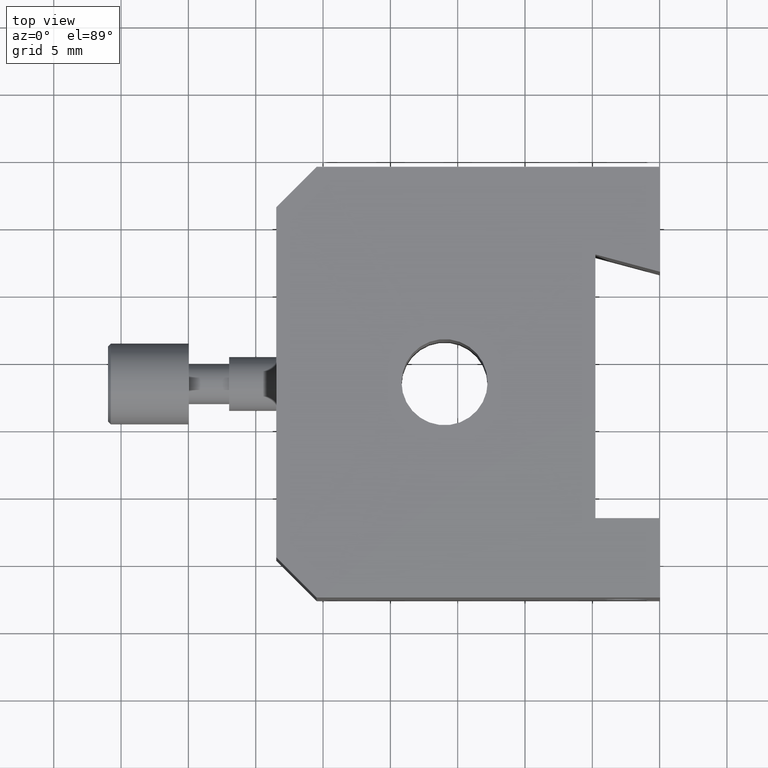
[diagram: clean part render]
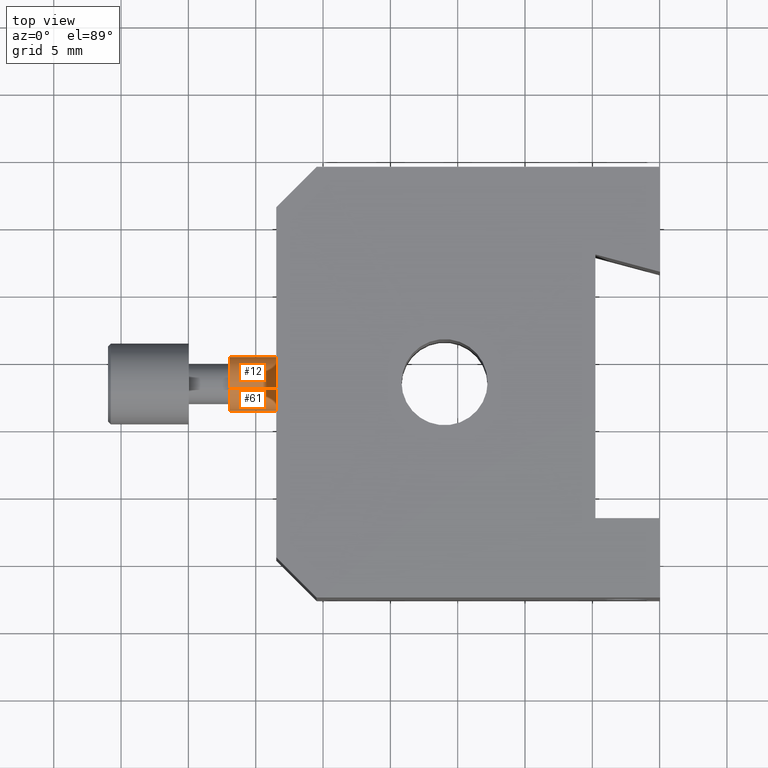
[diagram: same view with one multi-face feature highlighted, each face labeled with its STEP entity id]
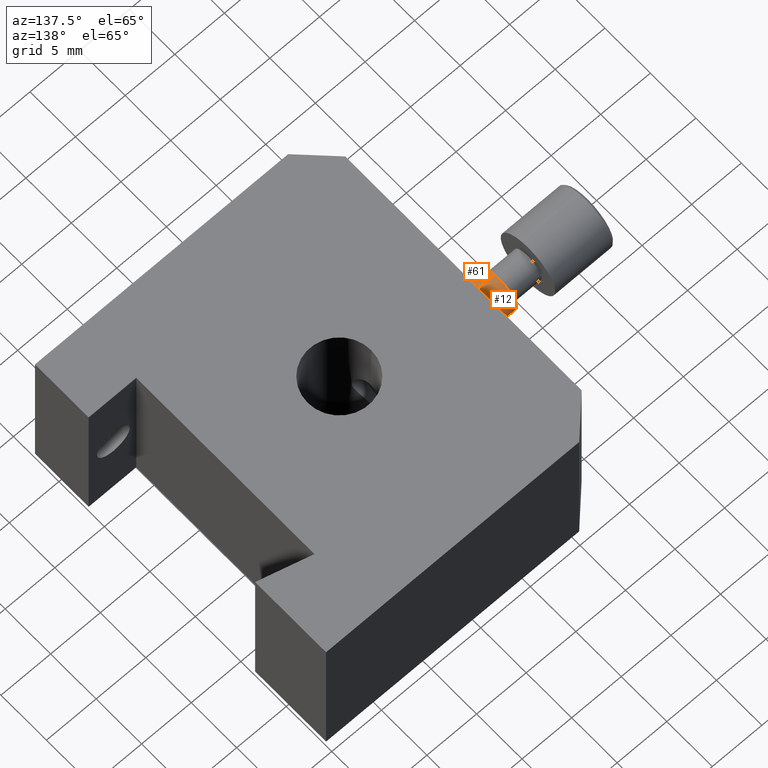
[diagram: same view with one multi-face feature highlighted, each face labeled with its STEP entity id]
A machine part, top view. The highlighted faces form ONE feature: a constant-radius fillet chain: 2 tangent blend faces with common blend radius 2 mm. The faces share edges in the B-rep.
A second angle (auxiliary view) of the same feature is appended — it is thin or edge-on in the first view.
Their STEP definitions:
[1] entity #61 (Cylinder):
#13 = ORIENTED_EDGE ( 'NONE', *, *, #106, .F. ) ;
#16 = DIRECTION ( 'NONE',  ( 0.0000000000000000000, -0.1960853106169124200, 0.9805868400913144700 ) ) ;
#28 = LINE ( 'NONE', #717, #627 ) ;
#30 = ORIENTED_EDGE ( 'NONE', *, *, #112, .T. ) ;
#61 = ADVANCED_FACE ( 'NONE', ( #699 ), #304, .T. ) ;
#103 = EDGE_CURVE ( 'NONE', #564, #999, #453, .T. ) ;
#104 = CARTESIAN_POINT ( 'NONE',  ( -9.971059507494862500, -1.599800024996657100, 32.00000000000000700 ) ) ;
#106 = EDGE_CURVE ( 'NONE', #855, #677, #253, .T. ) ;
#112 = EDGE_CURVE ( 'NONE', #855, #564, #28, .T. ) ;
#115 = EDGE_CURVE ( 'NONE', #677, #999, #834, .T. ) ;
#128 = AXIS2_PLACEMENT_3D ( 'NONE', #104, #572, #16 ) ;
#136 = AXIS2_PLACEMENT_3D ( 'NONE', #352, #792, #420 ) ;
#181 = DIRECTION ( 'NONE',  ( 1.000000000000000000, 0.0000000000000000000, -0.0000000000000000000 ) ) ;
#190 = ORIENTED_EDGE ( 'NONE', *, *, #115, .F. ) ;
#223 = VECTOR ( 'NONE', #181, 1000.000000000000000 ) ;
#253 = CIRCLE ( 'NONE', #136, 2.000000000000000000 ) ;
#304 = CYLINDRICAL_SURFACE ( 'NONE', #639, 2.000000000000000000 ) ;
#352 = CARTESIAN_POINT ( 'NONE',  ( -21.97105950749486100, -1.599800024996657100, 32.00000000000000700 ) ) ;
#420 = DIRECTION ( 'NONE',  ( 0.0000000000000000000, -0.1960853106169124200, 0.9805868400913144700 ) ) ;
#426 = CARTESIAN_POINT ( 'NONE',  ( -21.97105950749486100, -1.599800024996657100, 32.00000000000000700 ) ) ;
#453 = CIRCLE ( 'NONE', #128, 2.000000000000000000 ) ;
#507 = DIRECTION ( 'NONE',  ( 1.000000000000000000, 0.0000000000000000000, -0.0000000000000000000 ) ) ;
#561 = CARTESIAN_POINT ( 'NONE',  ( -21.97105950749486100, -1.991970646230481800, 33.96117368018264000 ) ) ;
#564 = VERTEX_POINT ( 'NONE', #854 ) ;
#572 = DIRECTION ( 'NONE',  ( -1.000000000000000000, 0.0000000000000000000, 0.0000000000000000000 ) ) ;
#627 = VECTOR ( 'NONE', #875, 1000.000000000000000 ) ;
#639 = AXIS2_PLACEMENT_3D ( 'NONE', #426, #507, #892 ) ;
#642 = CARTESIAN_POINT ( 'NONE',  ( -21.97105950749486100, -1.991970646230481800, 33.96117368018264000 ) ) ;
#672 = ORIENTED_EDGE ( 'NONE', *, *, #103, .T. ) ;
#677 = VERTEX_POINT ( 'NONE', #561 ) ;
#699 = FACE_OUTER_BOUND ( 'NONE', #806, .T. ) ;
#717 = CARTESIAN_POINT ( 'NONE',  ( -21.97105950749486100, -1.207629403762832100, 30.03882631981737800 ) ) ;
#792 = DIRECTION ( 'NONE',  ( -1.000000000000000000, 0.0000000000000000000, 0.0000000000000000000 ) ) ;
#806 = EDGE_LOOP ( 'NONE', ( #190, #13, #30, #672 ) ) ;
#834 = LINE ( 'NONE', #642, #223 ) ;
#854 = CARTESIAN_POINT ( 'NONE',  ( -9.971059507494862500, -1.207629403762832100, 30.03882631981737800 ) ) ;
#855 = VERTEX_POINT ( 'NONE', #976 ) ;
#875 = DIRECTION ( 'NONE',  ( 1.000000000000000000, 0.0000000000000000000, -0.0000000000000000000 ) ) ;
#891 = CARTESIAN_POINT ( 'NONE',  ( -9.971059507494862500, -1.991970646230481800, 33.96117368018264000 ) ) ;
#892 = DIRECTION ( 'NONE',  ( 0.0000000000000000000, 0.1960853106169124200, -0.9805868400913144700 ) ) ;
#976 = CARTESIAN_POINT ( 'NONE',  ( -21.97105950749486100, -1.207629403762832100, 30.03882631981737800 ) ) ;
#999 = VERTEX_POINT ( 'NONE', #891 ) ;
[2] entity #12 (Cylinder):
#12 = ADVANCED_FACE ( 'NONE', ( #463 ), #632, .T. ) ;
#28 = LINE ( 'NONE', #717, #627 ) ;
#76 = ORIENTED_EDGE ( 'NONE', *, *, #95, .T. ) ;
#84 = DIRECTION ( 'NONE',  ( 0.0000000000000000000, 0.1960853106169124200, -0.9805868400913144700 ) ) ;
#95 = EDGE_CURVE ( 'NONE', #999, #564, #480, .T. ) ;
#112 = EDGE_CURVE ( 'NONE', #855, #564, #28, .T. ) ;
#115 = EDGE_CURVE ( 'NONE', #677, #999, #834, .T. ) ;
#127 = AXIS2_PLACEMENT_3D ( 'NONE', #357, #797, #271 ) ;
#181 = DIRECTION ( 'NONE',  ( 1.000000000000000000, 0.0000000000000000000, -0.0000000000000000000 ) ) ;
#188 = AXIS2_PLACEMENT_3D ( 'NONE', #907, #444, #977 ) ;
#223 = VECTOR ( 'NONE', #181, 1000.000000000000000 ) ;
#233 = ORIENTED_EDGE ( 'NONE', *, *, #115, .T. ) ;
#271 = DIRECTION ( 'NONE',  ( 0.0000000000000000000, -0.1960853106169124200, 0.9805868400913144700 ) ) ;
#328 = EDGE_CURVE ( 'NONE', #677, #855, #630, .T. ) ;
#357 = CARTESIAN_POINT ( 'NONE',  ( -9.971059507494862500, -1.599800024996657100, 32.00000000000000700 ) ) ;
#444 = DIRECTION ( 'NONE',  ( -1.000000000000000000, 0.0000000000000000000, 0.0000000000000000000 ) ) ;
#463 = FACE_OUTER_BOUND ( 'NONE', #749, .T. ) ;
#480 = CIRCLE ( 'NONE', #127, 2.000000000000000000 ) ;
#561 = CARTESIAN_POINT ( 'NONE',  ( -21.97105950749486100, -1.991970646230481800, 33.96117368018264000 ) ) ;
#564 = VERTEX_POINT ( 'NONE', #854 ) ;
#574 = AXIS2_PLACEMENT_3D ( 'NONE', #626, #777, #84 ) ;
#626 = CARTESIAN_POINT ( 'NONE',  ( -21.97105950749486100, -1.599800024996657100, 32.00000000000000700 ) ) ;
#627 = VECTOR ( 'NONE', #875, 1000.000000000000000 ) ;
#630 = CIRCLE ( 'NONE', #188, 2.000000000000000000 ) ;
#632 = CYLINDRICAL_SURFACE ( 'NONE', #574, 2.000000000000000000 ) ;
#642 = CARTESIAN_POINT ( 'NONE',  ( -21.97105950749486100, -1.991970646230481800, 33.96117368018264000 ) ) ;
#677 = VERTEX_POINT ( 'NONE', #561 ) ;
#695 = ORIENTED_EDGE ( 'NONE', *, *, #112, .F. ) ;
#717 = CARTESIAN_POINT ( 'NONE',  ( -21.97105950749486100, -1.207629403762832100, 30.03882631981737800 ) ) ;
#749 = EDGE_LOOP ( 'NONE', ( #919, #233, #76, #695 ) ) ;
#777 = DIRECTION ( 'NONE',  ( 1.000000000000000000, 0.0000000000000000000, -0.0000000000000000000 ) ) ;
#797 = DIRECTION ( 'NONE',  ( -1.000000000000000000, 0.0000000000000000000, 0.0000000000000000000 ) ) ;
#834 = LINE ( 'NONE', #642, #223 ) ;
#854 = CARTESIAN_POINT ( 'NONE',  ( -9.971059507494862500, -1.207629403762832100, 30.03882631981737800 ) ) ;
#855 = VERTEX_POINT ( 'NONE', #976 ) ;
#875 = DIRECTION ( 'NONE',  ( 1.000000000000000000, 0.0000000000000000000, -0.0000000000000000000 ) ) ;
#891 = CARTESIAN_POINT ( 'NONE',  ( -9.971059507494862500, -1.991970646230481800, 33.96117368018264000 ) ) ;
#907 = CARTESIAN_POINT ( 'NONE',  ( -21.97105950749486100, -1.599800024996657100, 32.00000000000000700 ) ) ;
#919 = ORIENTED_EDGE ( 'NONE', *, *, #328, .F. ) ;
#976 = CARTESIAN_POINT ( 'NONE',  ( -21.97105950749486100, -1.207629403762832100, 30.03882631981737800 ) ) ;
#977 = DIRECTION ( 'NONE',  ( 0.0000000000000000000, -0.1960853106169124200, 0.9805868400913144700 ) ) ;
#999 = VERTEX_POINT ( 'NONE', #891 ) ;